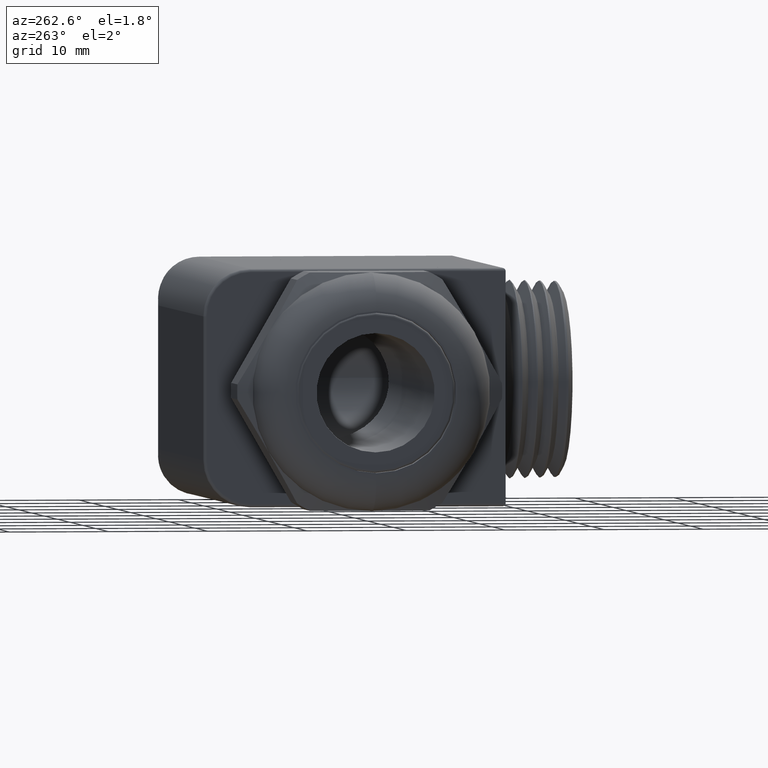
[diagram: clean part render]
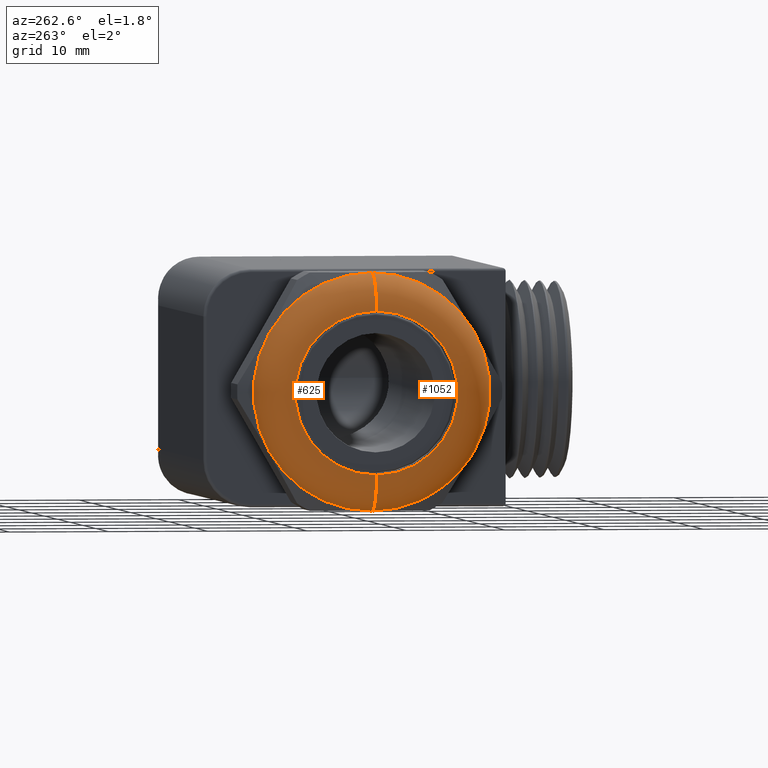
[diagram: same view with one multi-face feature highlighted, each face labeled with its STEP entity id]
A machine part, auxiliary view. The highlighted faces form ONE feature: a constant-radius fillet chain: 2 tangent blend faces with common blend radius 3.7298 mm. The faces share edges in the B-rep.
Their STEP definitions:
[1] entity #625 (Torus):
#625 = ADVANCED_FACE ( 'NONE', ( #2469 ), #2467, .T. ) ;
#626 = EDGE_LOOP ( 'NONE', ( #627, #635, #638, #641 ) ) ;
#627 = ORIENTED_EDGE ( 'NONE', *, *, #632, .F. ) ;
#632 = EDGE_CURVE ( 'NONE', #633, #634, #2452, .T. ) ;
#633 = VERTEX_POINT ( 'NONE', #2443 ) ;
#634 = VERTEX_POINT ( 'NONE', #2442 ) ;
#635 = ORIENTED_EDGE ( 'NONE', *, *, #636, .T. ) ;
#636 = EDGE_CURVE ( 'NONE', #633, #637, #2499, .T. ) ;
#637 = VERTEX_POINT ( 'NONE', #2495 ) ;
#638 = ORIENTED_EDGE ( 'NONE', *, *, #639, .F. ) ;
#639 = EDGE_CURVE ( 'NONE', #640, #637, #2494, .T. ) ;
#640 = VERTEX_POINT ( 'NONE', #2489 ) ;
#641 = ORIENTED_EDGE ( 'NONE', *, *, #642, .F. ) ;
#642 = EDGE_CURVE ( 'NONE', #634, #640, #2524, .T. ) ;
#2441 = CARTESIAN_POINT ( 'NONE',  ( -0.5251578947368421600, 3.957542814086710300E-017, 0.3231578947368421400 ) ) ;
#2442 = CARTESIAN_POINT ( 'NONE',  ( -0.6720000000000001500, 0.0000000000000000000, -0.3231578947368421400 ) ) ;
#2443 = CARTESIAN_POINT ( 'NONE',  ( -0.6720000000000001500, 4.856691385039635600E-017, 0.3231578947368421400 ) ) ;
#2444 = DIRECTION ( 'NONE',  ( 0.0000000000000000000, 0.0000000000000000000, -1.000000000000000000 ) ) ;
#2445 = DIRECTION ( 'NONE',  ( -1.000000000000000000, 0.0000000000000000000, 0.0000000000000000000 ) ) ;
#2446 = CARTESIAN_POINT ( 'NONE',  ( -0.6720000000000001500, 0.0000000000000000000, 0.0000000000000000000 ) ) ;
#2447 = AXIS2_PLACEMENT_3D ( 'NONE', #2446, #2445, #2444 ) ;
#2452 = CIRCLE ( 'NONE', #2447, 0.3231578947368421400 ) ;
#2464 = DIRECTION ( 'NONE',  ( 0.0000000000000000000, 0.0000000000000000000, -1.000000000000000000 ) ) ;
#2465 = DIRECTION ( 'NONE',  ( 1.000000000000000000, 0.0000000000000000000, 0.0000000000000000000 ) ) ;
#2466 = AXIS2_PLACEMENT_3D ( 'NONE', #2468, #2465, #2464 ) ;
#2467 = TOROIDAL_SURFACE ( 'NONE', #2466, 0.3231578947368421400, 0.1468421052631579100 ) ;
#2468 = CARTESIAN_POINT ( 'NONE',  ( -0.5251578947368421600, 0.0000000000000000000, 0.0000000000000000000 ) ) ;
#2469 = FACE_OUTER_BOUND ( 'NONE', #626, .T. ) ;
#2489 = CARTESIAN_POINT ( 'NONE',  ( -0.5251578947368421600, 5.755839955992560900E-017, -0.4700000000000000300 ) ) ;
#2490 = DIRECTION ( 'NONE',  ( 0.0000000000000000000, 0.0000000000000000000, -1.000000000000000000 ) ) ;
#2491 = DIRECTION ( 'NONE',  ( 1.000000000000000000, 0.0000000000000000000, 0.0000000000000000000 ) ) ;
#2492 = CARTESIAN_POINT ( 'NONE',  ( -0.5251578947368421600, 0.0000000000000000000, 0.0000000000000000000 ) ) ;
#2493 = AXIS2_PLACEMENT_3D ( 'NONE', #2492, #2491, #2490 ) ;
#2494 = CIRCLE ( 'NONE', #2493, 0.4700000000000000300 ) ;
#2495 = CARTESIAN_POINT ( 'NONE',  ( -0.5251578947368421600, 0.0000000000000000000, 0.4700000000000000300 ) ) ;
#2496 = DIRECTION ( 'NONE',  ( 0.0000000000000000000, 1.224646799147353700E-016, 1.000000000000000000 ) ) ;
#2497 = DIRECTION ( 'NONE',  ( 0.0000000000000000000, 1.000000000000000000, -1.224646799147353200E-016 ) ) ;
#2498 = AXIS2_PLACEMENT_3D ( 'NONE', #2441, #2497, #2496 ) ;
#2499 = CIRCLE ( 'NONE', #2498, 0.1468421052631579100 ) ;
#2520 = DIRECTION ( 'NONE',  ( 0.0000000000000000000, 0.0000000000000000000, -1.000000000000000000 ) ) ;
#2521 = DIRECTION ( 'NONE',  ( 0.0000000000000000000, -1.000000000000000000, 0.0000000000000000000 ) ) ;
#2522 = CARTESIAN_POINT ( 'NONE',  ( -0.5251578947368421600, 0.0000000000000000000, -0.3231578947368421400 ) ) ;
#2523 = AXIS2_PLACEMENT_3D ( 'NONE', #2522, #2521, #2520 ) ;
#2524 = CIRCLE ( 'NONE', #2523, 0.1468421052631579100 ) ;
[2] entity #1052 (Torus):
#633 = VERTEX_POINT ( 'NONE', #2443 ) ;
#634 = VERTEX_POINT ( 'NONE', #2442 ) ;
#636 = EDGE_CURVE ( 'NONE', #633, #637, #2499, .T. ) ;
#637 = VERTEX_POINT ( 'NONE', #2495 ) ;
#640 = VERTEX_POINT ( 'NONE', #2489 ) ;
#642 = EDGE_CURVE ( 'NONE', #634, #640, #2524, .T. ) ;
#852 = ORIENTED_EDGE ( 'NONE', *, *, #1085, .F. ) ;
#853 = ORIENTED_EDGE ( 'NONE', *, *, #642, .T. ) ;
#856 = ORIENTED_EDGE ( 'NONE', *, *, #636, .F. ) ;
#1045 = ORIENTED_EDGE ( 'NONE', *, *, #1095, .F. ) ;
#1052 = ADVANCED_FACE ( 'NONE', ( #3354 ), #3397, .T. ) ;
#1054 = EDGE_LOOP ( 'NONE', ( #856, #852, #853, #1045 ) ) ;
#1085 = EDGE_CURVE ( 'NONE', #634, #633, #3276, .T. ) ;
#1095 = EDGE_CURVE ( 'NONE', #637, #640, #3271, .T. ) ;
#2441 = CARTESIAN_POINT ( 'NONE',  ( -0.5251578947368421600, 3.957542814086710300E-017, 0.3231578947368421400 ) ) ;
#2442 = CARTESIAN_POINT ( 'NONE',  ( -0.6720000000000001500, 0.0000000000000000000, -0.3231578947368421400 ) ) ;
#2443 = CARTESIAN_POINT ( 'NONE',  ( -0.6720000000000001500, 4.856691385039635600E-017, 0.3231578947368421400 ) ) ;
#2489 = CARTESIAN_POINT ( 'NONE',  ( -0.5251578947368421600, 5.755839955992560900E-017, -0.4700000000000000300 ) ) ;
#2495 = CARTESIAN_POINT ( 'NONE',  ( -0.5251578947368421600, 0.0000000000000000000, 0.4700000000000000300 ) ) ;
#2496 = DIRECTION ( 'NONE',  ( 0.0000000000000000000, 1.224646799147353700E-016, 1.000000000000000000 ) ) ;
#2497 = DIRECTION ( 'NONE',  ( 0.0000000000000000000, 1.000000000000000000, -1.224646799147353200E-016 ) ) ;
#2498 = AXIS2_PLACEMENT_3D ( 'NONE', #2441, #2497, #2496 ) ;
#2499 = CIRCLE ( 'NONE', #2498, 0.1468421052631579100 ) ;
#2520 = DIRECTION ( 'NONE',  ( 0.0000000000000000000, 0.0000000000000000000, -1.000000000000000000 ) ) ;
#2521 = DIRECTION ( 'NONE',  ( 0.0000000000000000000, -1.000000000000000000, 0.0000000000000000000 ) ) ;
#2522 = CARTESIAN_POINT ( 'NONE',  ( -0.5251578947368421600, 0.0000000000000000000, -0.3231578947368421400 ) ) ;
#2523 = AXIS2_PLACEMENT_3D ( 'NONE', #2522, #2521, #2520 ) ;
#2524 = CIRCLE ( 'NONE', #2523, 0.1468421052631579100 ) ;
#3267 = DIRECTION ( 'NONE',  ( 0.0000000000000000000, 0.0000000000000000000, -1.000000000000000000 ) ) ;
#3268 = DIRECTION ( 'NONE',  ( 1.000000000000000000, 0.0000000000000000000, 0.0000000000000000000 ) ) ;
#3269 = CARTESIAN_POINT ( 'NONE',  ( -0.5251578947368421600, 0.0000000000000000000, 0.0000000000000000000 ) ) ;
#3270 = AXIS2_PLACEMENT_3D ( 'NONE', #3269, #3268, #3267 ) ;
#3271 = CIRCLE ( 'NONE', #3270, 0.4700000000000000300 ) ;
#3272 = DIRECTION ( 'NONE',  ( 0.0000000000000000000, 0.0000000000000000000, -1.000000000000000000 ) ) ;
#3273 = DIRECTION ( 'NONE',  ( -1.000000000000000000, 0.0000000000000000000, 0.0000000000000000000 ) ) ;
#3274 = CARTESIAN_POINT ( 'NONE',  ( -0.6720000000000001500, 0.0000000000000000000, 0.0000000000000000000 ) ) ;
#3275 = AXIS2_PLACEMENT_3D ( 'NONE', #3274, #3273, #3272 ) ;
#3276 = CIRCLE ( 'NONE', #3275, 0.3231578947368421400 ) ;
#3354 = FACE_OUTER_BOUND ( 'NONE', #1054, .T. ) ;
#3360 = CARTESIAN_POINT ( 'NONE',  ( -0.5251578947368421600, 0.0000000000000000000, 0.0000000000000000000 ) ) ;
#3393 = DIRECTION ( 'NONE',  ( 0.0000000000000000000, 0.0000000000000000000, -1.000000000000000000 ) ) ;
#3394 = DIRECTION ( 'NONE',  ( 1.000000000000000000, 0.0000000000000000000, 0.0000000000000000000 ) ) ;
#3395 = AXIS2_PLACEMENT_3D ( 'NONE', #3360, #3394, #3393 ) ;
#3397 = TOROIDAL_SURFACE ( 'NONE', #3395, 0.3231578947368421400, 0.1468421052631579100 ) ;